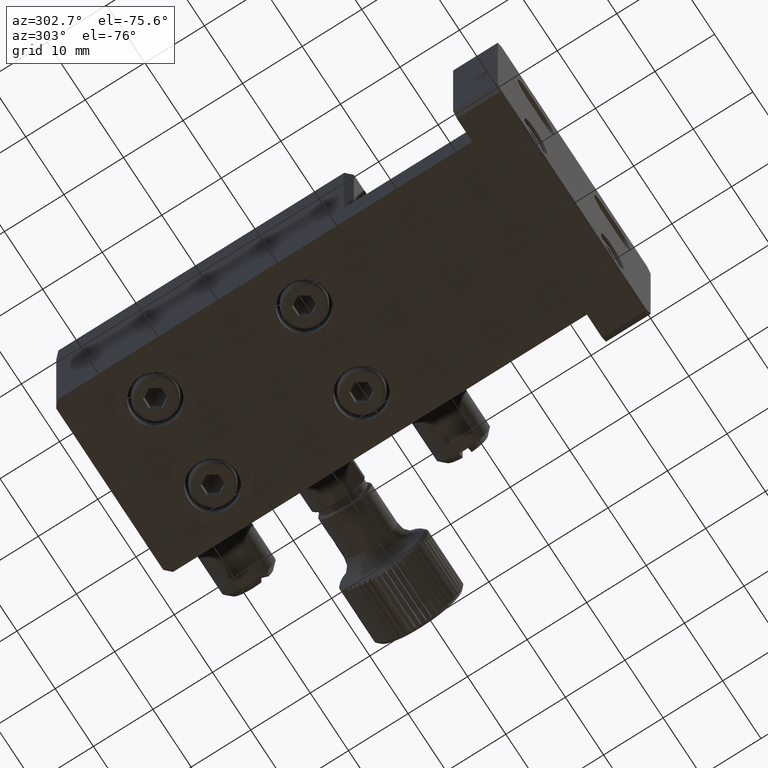
[diagram: clean part render]
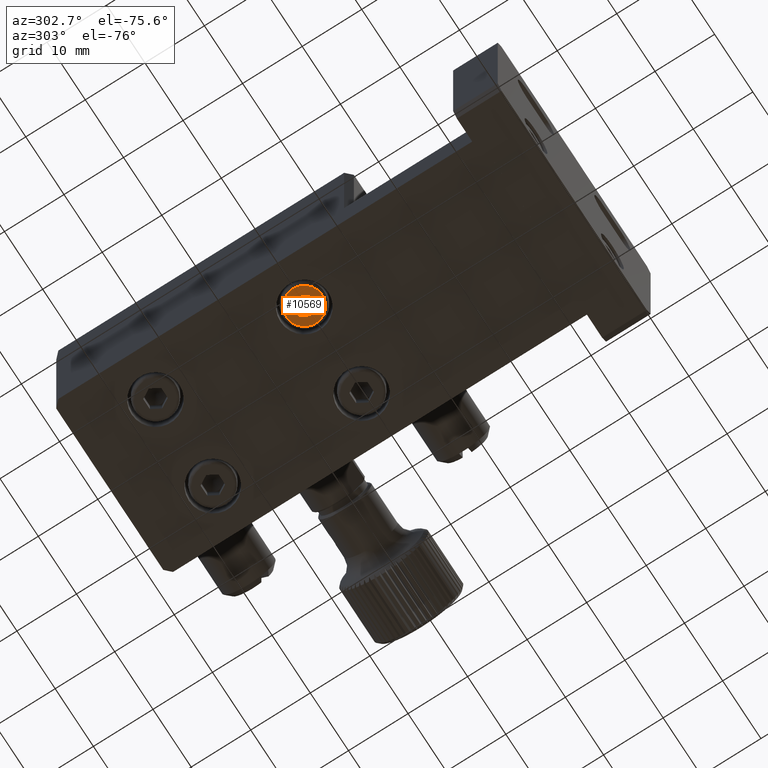
[diagram: same view with one face highlighted and labeled with its STEP entity id]
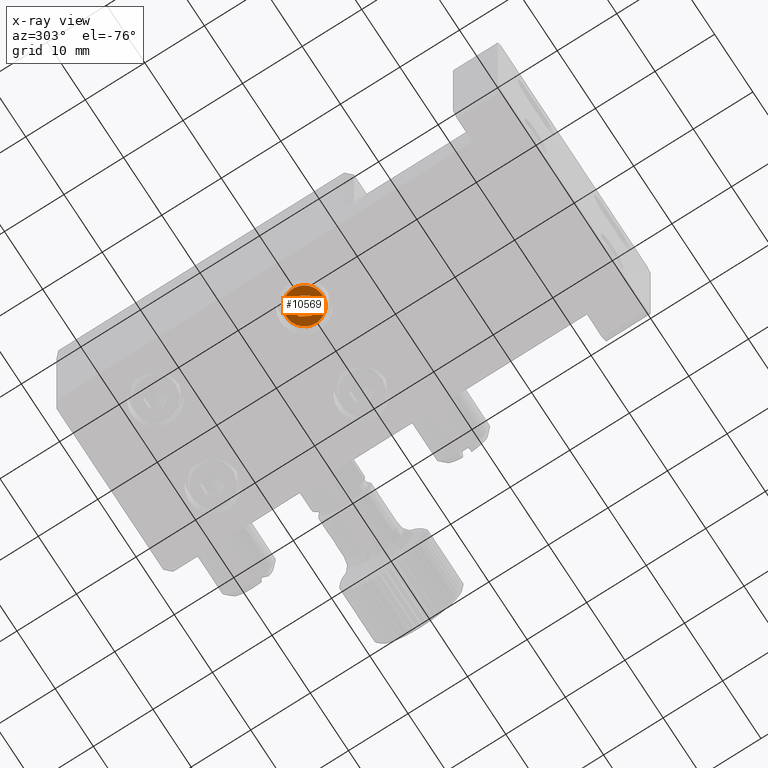
[diagram: x-ray of the same camera — body ghosted, the highlighted face saturated]
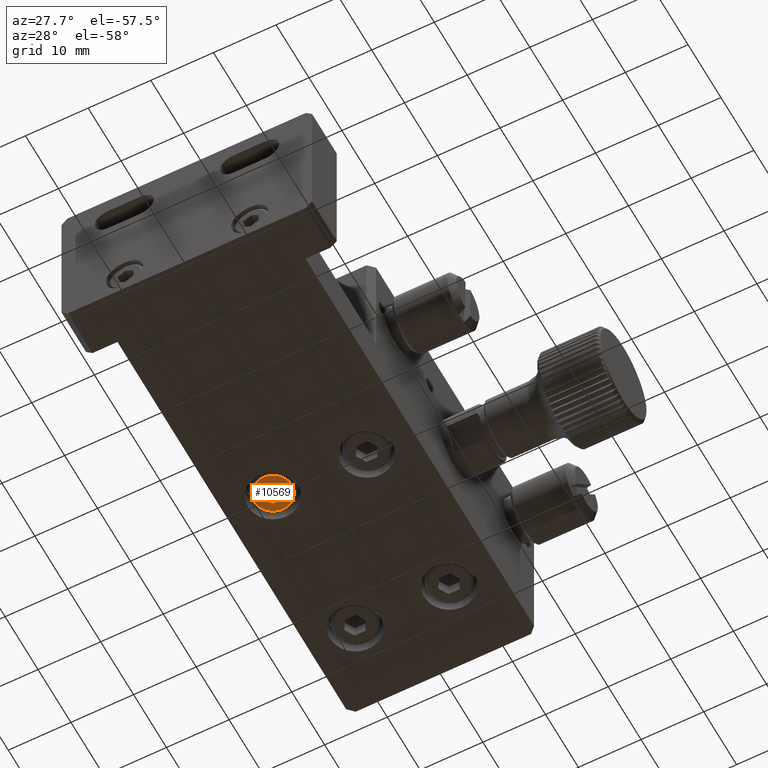
[diagram: same view with one face highlighted and labeled with its STEP entity id]
A machine part, auxiliary view. The second image highlights one B-rep face of the part: STEP entity #10569.
The next image is the same camera in x-ray: the body ghosted, the highlighted face saturated — about 0% of this face is hidden behind the body in this view.
A second angle (auxiliary view) of the same face is appended — the face is thin or edge-on in the first view.
In plain terms, the highlighted planar face has unit normal (0, -0, 1).
Its self-contained STEP definition (entity closure, byte-faithful):
#426 = ORIENTED_EDGE ( 'NONE', *, *, #82930, .F. ) ;
#523 = VERTEX_POINT ( 'NONE', #57457 ) ;
#2253 =( BOUNDED_CURVE ( )  B_SPLINE_CURVE ( 3, ( #27431, #88480, #62719, #17866 ),
 .UNSPECIFIED., .F., .F. ) 
 B_SPLINE_CURVE_WITH_KNOTS ( ( 4, 4 ),
 ( 0.000000000000000000, 1.000000000000000000 ),
 .UNSPECIFIED. ) 
 CURVE ( )  GEOMETRIC_REPRESENTATION_ITEM ( )  RATIONAL_B_SPLINE_CURVE ( ( 1.000000000000000000, 0.3333333333333333703, 0.3333333333333333703, 1.000000000000000000 ) ) 
 REPRESENTATION_ITEM ( '' )  );
#5014 = ORIENTED_EDGE ( 'NONE', *, *, #65169, .F. ) ;
#8505 = PLANE ( 'NONE',  #60445 ) ;
#9363 = EDGE_LOOP ( 'NONE', ( #90487, #99220, #96967, #5014, #117424, #426 ) ) ;
#10569 = ADVANCED_FACE ( 'NONE', ( #108934, #98204 ), #8505, .F. ) ;
#11101 = DIRECTION ( 'NONE',  ( 0.5000000000000002220, -0.8660254037844384856, 0.000000000000000000 ) ) ;
#11512 = VERTEX_POINT ( 'NONE', #13190 ) ;
#13190 = CARTESIAN_POINT ( 'NONE',  ( -5.767949192430666727, 40.50000000000112266, -19.40000000000000924 ) ) ;
#13799 =( BOUNDED_CURVE ( )  B_SPLINE_CURVE ( 3, ( #110373, #29065, #55402, #65538 ),
 .UNSPECIFIED., .F., .F. ) 
 B_SPLINE_CURVE_WITH_KNOTS ( ( 4, 4 ),
 ( 0.000000000000000000, 1.000000000000000000 ),
 .UNSPECIFIED. ) 
 CURVE ( )  GEOMETRIC_REPRESENTATION_ITEM ( )  RATIONAL_B_SPLINE_CURVE ( ( 1.000000000000000000, 0.3333333333333333703, 0.3333333333333333703, 1.000000000000000000 ) ) 
 REPRESENTATION_ITEM ( '' )  );
#17468 = VERTEX_POINT ( 'NONE', #44567 ) ;
#17866 = CARTESIAN_POINT ( 'NONE',  ( -10.49999999999954703, 40.50000000000112266, -19.40000000000000924 ) ) ;
#18685 = CARTESIAN_POINT ( 'NONE',  ( -6.633974596215103325, 39.00000000000112266, -19.40000000000000924 ) ) ;
#19512 = VERTEX_POINT ( 'NONE', #70565 ) ;
#20636 = LINE ( 'NONE', #75649, #83948 ) ;
#27042 = CARTESIAN_POINT ( 'NONE',  ( -7.499999999999545253, 40.50000000000112266, -19.40000000000000924 ) ) ;
#27431 = CARTESIAN_POINT ( 'NONE',  ( -4.499999999999545253, 40.50000000000112266, -19.40000000000000924 ) ) ;
#28111 = LINE ( 'NONE', #56771, #37913 ) ;
#29065 = CARTESIAN_POINT ( 'NONE',  ( -10.49999999999954703, 34.50000000000112976, -19.40000000000000924 ) ) ;
#29793 = VECTOR ( 'NONE', #63175, 1000.000000000000114 ) ;
#33327 = LINE ( 'NONE', #33921, #95817 ) ;
#33921 = CARTESIAN_POINT ( 'NONE',  ( -5.767949192430666727, 40.50000000000112266, -19.40000000000000924 ) ) ;
#34653 = LINE ( 'NONE', #68765, #108644 ) ;
#37913 = VECTOR ( 'NONE', #75910, 1000.000000000000114 ) ;
#40206 = EDGE_CURVE ( 'NONE', #92753, #11512, #33327, .T. ) ;
#44567 = CARTESIAN_POINT ( 'NONE',  ( -9.232050807568422002, 40.50000000000112266, -19.40000000000000924 ) ) ;
#45149 = CARTESIAN_POINT ( 'NONE',  ( -6.633974596215107766, 42.00000000000113687, -19.40000000000000924 ) ) ;
#49930 = DIRECTION ( 'NONE',  ( 1.000000000000000000, -8.896017825522083176E-17, -7.913913315200665074E-33 ) ) ;
#52187 = DIRECTION ( 'NONE',  ( 6.123233995736766036E-17, -8.896017825522084408E-17, 1.000000000000000000 ) ) ;
#53183 = DIRECTION ( 'NONE',  ( -0.5000000000000002220, 0.8660254037844384856, 0.000000000000000000 ) ) ;
#54199 = LINE ( 'NONE', #71005, #29793 ) ;
#55402 = CARTESIAN_POINT ( 'NONE',  ( -4.499999999999544364, 34.50000000000112976, -19.40000000000000924 ) ) ;
#55846 = VERTEX_POINT ( 'NONE', #101562 ) ;
#56771 = CARTESIAN_POINT ( 'NONE',  ( -5.767949192430666727, 40.50000000000112266, -19.40000000000000924 ) ) ;
#56884 = CARTESIAN_POINT ( 'NONE',  ( -10.49999999999954703, 40.50000000000112266, -19.40000000000000924 ) ) ;
#57457 = CARTESIAN_POINT ( 'NONE',  ( -8.366025403783982739, 42.00000000000113687, -19.40000000000000924 ) ) ;
#60445 = AXIS2_PLACEMENT_3D ( 'NONE', #27042, #52187, #91005 ) ;
#61081 = ORIENTED_EDGE ( 'NONE', *, *, #65563, .F. ) ;
#62719 = CARTESIAN_POINT ( 'NONE',  ( -10.49999999999954525, 46.50000000000112266, -19.40000000000000924 ) ) ;
#63175 = DIRECTION ( 'NONE',  ( 0.5000000000000003331, 0.8660254037844384856, 0.000000000000000000 ) ) ;
#65169 = EDGE_CURVE ( 'NONE', #19512, #17468, #34653, .T. ) ;
#65538 = CARTESIAN_POINT ( 'NONE',  ( -4.499999999999545253, 40.50000000000112266, -19.40000000000000924 ) ) ;
#65563 = EDGE_CURVE ( 'NONE', #55846, #116792, #2253, .T. ) ;
#67696 = EDGE_CURVE ( 'NONE', #17468, #523, #54199, .T. ) ;
#68765 = CARTESIAN_POINT ( 'NONE',  ( -9.232050807568422002, 40.50000000000112266, -19.40000000000000924 ) ) ;
#70565 = CARTESIAN_POINT ( 'NONE',  ( -8.366025403783982739, 39.00000000000112266, -19.40000000000000924 ) ) ;
#71005 = CARTESIAN_POINT ( 'NONE',  ( -8.366025403783982739, 42.00000000000113687, -19.40000000000000924 ) ) ;
#74909 = EDGE_CURVE ( 'NONE', #116792, #55846, #13799, .T. ) ;
#75649 = CARTESIAN_POINT ( 'NONE',  ( -6.633974596215106878, 42.00000000000113687, -19.40000000000000924 ) ) ;
#75885 = DIRECTION ( 'NONE',  ( -1.000000000000000000, 8.896017825522083176E-17, 7.913913315200665074E-33 ) ) ;
#75910 = DIRECTION ( 'NONE',  ( -0.4999999999999991673, -0.8660254037844390407, 0.000000000000000000 ) ) ;
#82930 = EDGE_CURVE ( 'NONE', #11512, #115848, #28111, .T. ) ;
#83948 = VECTOR ( 'NONE', #49930, 1000.000000000000000 ) ;
#88480 = CARTESIAN_POINT ( 'NONE',  ( -4.499999999999544364, 46.50000000000112266, -19.40000000000000924 ) ) ;
#90487 = ORIENTED_EDGE ( 'NONE', *, *, #40206, .F. ) ;
#91005 = DIRECTION ( 'NONE',  ( 0.000000000000000000, -1.000000000000000000, -8.896017825522084408E-17 ) ) ;
#92753 = VERTEX_POINT ( 'NONE', #45149 ) ;
#92916 = ORIENTED_EDGE ( 'NONE', *, *, #74909, .F. ) ;
#95369 = EDGE_CURVE ( 'NONE', #523, #92753, #20636, .T. ) ;
#95817 = VECTOR ( 'NONE', #11101, 1000.000000000000114 ) ;
#96967 = ORIENTED_EDGE ( 'NONE', *, *, #67696, .F. ) ;
#98204 = FACE_OUTER_BOUND ( 'NONE', #102466, .T. ) ;
#99220 = ORIENTED_EDGE ( 'NONE', *, *, #95369, .F. ) ;
#101562 = CARTESIAN_POINT ( 'NONE',  ( -4.499999999999545253, 40.50000000000112266, -19.40000000000000924 ) ) ;
#102466 = EDGE_LOOP ( 'NONE', ( #61081, #92916 ) ) ;
#106751 = VECTOR ( 'NONE', #75885, 1000.000000000000000 ) ;
#107555 = EDGE_CURVE ( 'NONE', #115848, #19512, #112320, .T. ) ;
#108644 = VECTOR ( 'NONE', #53183, 1000.000000000000114 ) ;
#108934 = FACE_BOUND ( 'NONE', #9363, .T. ) ;
#110373 = CARTESIAN_POINT ( 'NONE',  ( -10.49999999999954703, 40.50000000000112266, -19.40000000000000924 ) ) ;
#112320 = LINE ( 'NONE', #113509, #106751 ) ;
#113509 = CARTESIAN_POINT ( 'NONE',  ( -8.366025403783982739, 39.00000000000112266, -19.40000000000000924 ) ) ;
#115848 = VERTEX_POINT ( 'NONE', #18685 ) ;
#116792 = VERTEX_POINT ( 'NONE', #56884 ) ;
#117424 = ORIENTED_EDGE ( 'NONE', *, *, #107555, .F. ) ;